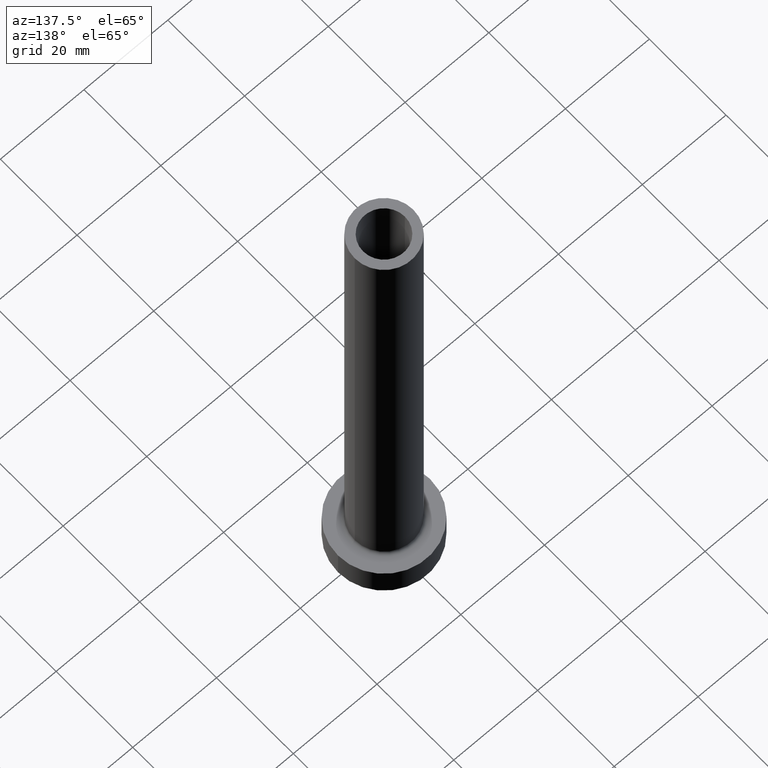
[diagram: clean part render]
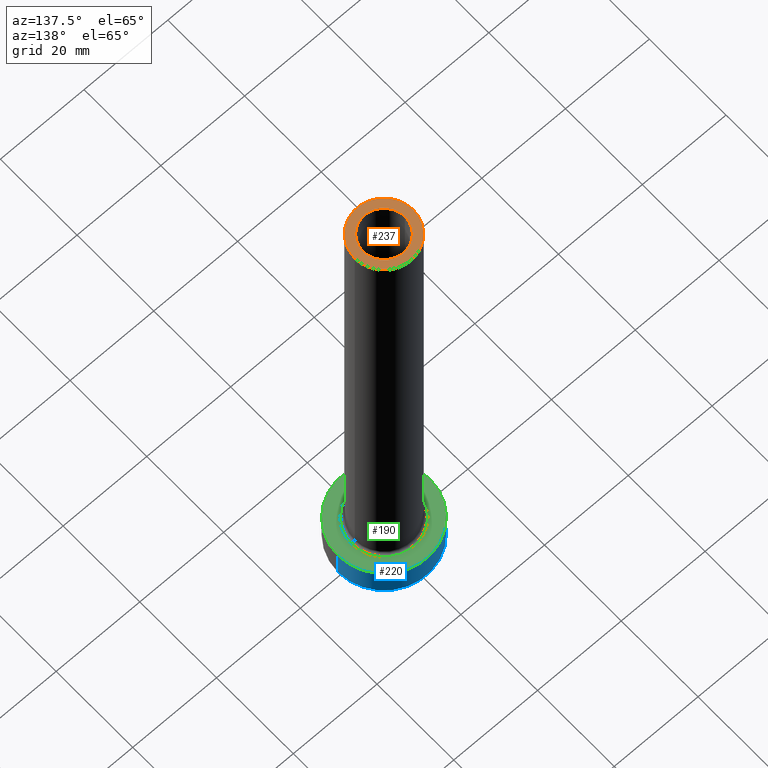
[diagram: same view with three faces highlighted in distinct colors, each labeled with its STEP entity id]
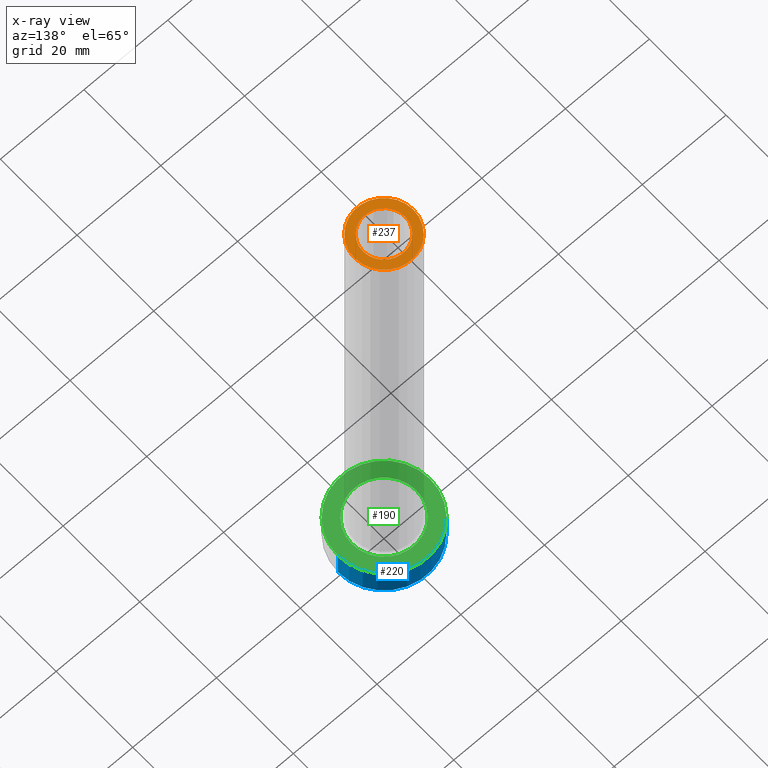
[diagram: x-ray of the same camera — body ghosted, the three highlighted faces saturated]
A machine part, auxiliary view with three faces highlighted in distinct colors.
The next image is the same camera in x-ray (body ghosted, the three faces saturated) — at least one of them is partly hidden behind the body in this view.
Their STEP definitions:

[orange] entity #237 — the highlighted planar face has unit normal (0, 0, 1).
#4 = AXIS2_PLACEMENT_3D ( 'NONE', #166, #136, #243 ) ;
#7 = VERTEX_POINT ( 'NONE', #266 ) ;
#17 = DIRECTION ( 'NONE',  ( 1.000000000000000000, 0.000000000000000000, -0.000000000000000000 ) ) ;
#18 = ORIENTED_EDGE ( 'NONE', *, *, #325, .F. ) ;
#64 = DIRECTION ( 'NONE',  ( 0.000000000000000000, 0.000000000000000000, 1.000000000000000000 ) ) ;
#66 = DIRECTION ( 'NONE',  ( 1.000000000000000000, 0.000000000000000000, 0.000000000000000000 ) ) ;
#70 = CIRCLE ( 'NONE', #223, 7.000000000000000888 ) ;
#80 = EDGE_CURVE ( 'NONE', #286, #359, #70, .T. ) ;
#91 = PLANE ( 'NONE',  #362 ) ;
#117 = DIRECTION ( 'NONE',  ( 0.000000000000000000, 0.000000000000000000, 1.000000000000000000 ) ) ;
#125 = EDGE_CURVE ( 'NONE', #7, #425, #402, .T. ) ;
#132 = AXIS2_PLACEMENT_3D ( 'NONE', #248, #380, #66 ) ;
#136 = DIRECTION ( 'NONE',  ( 0.000000000000000000, 0.000000000000000000, 1.000000000000000000 ) ) ;
#138 = CIRCLE ( 'NONE', #4, 5.000000000000000000 ) ;
#141 = FACE_BOUND ( 'NONE', #383, .T. ) ;
#147 = EDGE_CURVE ( 'NONE', #359, #286, #446, .T. ) ;
#150 = DIRECTION ( 'NONE',  ( 1.000000000000000000, 0.000000000000000000, 0.000000000000000000 ) ) ;
#165 = EDGE_LOOP ( 'NONE', ( #332, #255 ) ) ;
#166 = CARTESIAN_POINT ( 'NONE',  ( 0.000000000000000000, 0.000000000000000000, 125.0000000000000000 ) ) ;
#173 = DIRECTION ( 'NONE',  ( 0.000000000000000000, 0.000000000000000000, 1.000000000000000000 ) ) ;
#212 = CARTESIAN_POINT ( 'NONE',  ( 0.000000000000000000, 0.000000000000000000, 125.0000000000000000 ) ) ;
#223 = AXIS2_PLACEMENT_3D ( 'NONE', #280, #64, #306 ) ;
#237 = ADVANCED_FACE ( 'NONE', ( #141, #373 ), #91, .T. ) ;
#240 = CARTESIAN_POINT ( 'NONE',  ( 0.000000000000000000, 0.000000000000000000, 125.0000000000000000 ) ) ;
#243 = DIRECTION ( 'NONE',  ( 1.000000000000000000, 0.000000000000000000, 0.000000000000000000 ) ) ;
#248 = CARTESIAN_POINT ( 'NONE',  ( 0.000000000000000000, 0.000000000000000000, 125.0000000000000000 ) ) ;
#251 = AXIS2_PLACEMENT_3D ( 'NONE', #212, #117, #150 ) ;
#255 = ORIENTED_EDGE ( 'NONE', *, *, #80, .T. ) ;
#266 = CARTESIAN_POINT ( 'NONE',  ( 5.000000000000000000, 6.123233995736765296E-16, 125.0000000000000000 ) ) ;
#280 = CARTESIAN_POINT ( 'NONE',  ( 0.000000000000000000, 0.000000000000000000, 125.0000000000000000 ) ) ;
#283 = ORIENTED_EDGE ( 'NONE', *, *, #125, .F. ) ;
#286 = VERTEX_POINT ( 'NONE', #371 ) ;
#306 = DIRECTION ( 'NONE',  ( 1.000000000000000000, 0.000000000000000000, 0.000000000000000000 ) ) ;
#317 = CARTESIAN_POINT ( 'NONE',  ( -5.000000000000000000, 0.000000000000000000, 125.0000000000000000 ) ) ;
#325 = EDGE_CURVE ( 'NONE', #425, #7, #138, .T. ) ;
#326 = CARTESIAN_POINT ( 'NONE',  ( -7.000000000000000888, 0.000000000000000000, 125.0000000000000000 ) ) ;
#332 = ORIENTED_EDGE ( 'NONE', *, *, #147, .T. ) ;
#359 = VERTEX_POINT ( 'NONE', #326 ) ;
#362 = AXIS2_PLACEMENT_3D ( 'NONE', #240, #173, #17 ) ;
#371 = CARTESIAN_POINT ( 'NONE',  ( 7.000000000000000888, 8.572527594031474176E-16, 125.0000000000000000 ) ) ;
#373 = FACE_OUTER_BOUND ( 'NONE', #165, .T. ) ;
#380 = DIRECTION ( 'NONE',  ( 0.000000000000000000, 0.000000000000000000, 1.000000000000000000 ) ) ;
#383 = EDGE_LOOP ( 'NONE', ( #18, #283 ) ) ;
#402 = CIRCLE ( 'NONE', #132, 5.000000000000000000 ) ;
#425 = VERTEX_POINT ( 'NONE', #317 ) ;
#446 = CIRCLE ( 'NONE', #251, 7.000000000000000888 ) ;

[blue] entity #220 — the highlighted cylindrical surface (partial cylindrical patch) has radius 11 mm, axis along (-0, -0, -1).
#25 = CARTESIAN_POINT ( 'NONE',  ( 11.00000000000000000, 1.347111479062088405E-15, 7.000000000000000000 ) ) ;
#27 = CARTESIAN_POINT ( 'NONE',  ( 11.00000000000000000, 1.347111479062088405E-15, 0.000000000000000000 ) ) ;
#44 = CIRCLE ( 'NONE', #97, 11.00000000000000000 ) ;
#49 = ORIENTED_EDGE ( 'NONE', *, *, #366, .T. ) ;
#68 = AXIS2_PLACEMENT_3D ( 'NONE', #376, #408, #302 ) ;
#71 = EDGE_CURVE ( 'NONE', #155, #230, #201, .T. ) ;
#73 = DIRECTION ( 'NONE',  ( 0.000000000000000000, 0.000000000000000000, 1.000000000000000000 ) ) ;
#75 = EDGE_CURVE ( 'NONE', #218, #81, #215, .T. ) ;
#79 = CARTESIAN_POINT ( 'NONE',  ( -11.00000000000000000, 0.000000000000000000, 7.000000000000000000 ) ) ;
#81 = VERTEX_POINT ( 'NONE', #207 ) ;
#85 = CARTESIAN_POINT ( 'NONE',  ( 0.000000000000000000, 0.000000000000000000, 7.000000000000000000 ) ) ;
#95 = AXIS2_PLACEMENT_3D ( 'NONE', #85, #335, #439 ) ;
#97 = AXIS2_PLACEMENT_3D ( 'NONE', #214, #73, #148 ) ;
#107 = CIRCLE ( 'NONE', #68, 11.00000000000000000 ) ;
#118 = EDGE_LOOP ( 'NONE', ( #421, #397, #49, #278 ) ) ;
#148 = DIRECTION ( 'NONE',  ( 1.000000000000000000, 0.000000000000000000, 0.000000000000000000 ) ) ;
#155 = VERTEX_POINT ( 'NONE', #282 ) ;
#188 = VECTOR ( 'NONE', #270, 1000.000000000000000 ) ;
#201 = LINE ( 'NONE', #25, #228 ) ;
#207 = CARTESIAN_POINT ( 'NONE',  ( -11.00000000000000000, 0.000000000000000000, 0.000000000000000000 ) ) ;
#214 = CARTESIAN_POINT ( 'NONE',  ( 0.000000000000000000, 0.000000000000000000, 0.000000000000000000 ) ) ;
#215 = LINE ( 'NONE', #443, #188 ) ;
#218 = VERTEX_POINT ( 'NONE', #79 ) ;
#220 = ADVANCED_FACE ( 'NONE', ( #431 ), #364, .T. ) ;
#228 = VECTOR ( 'NONE', #241, 1000.000000000000000 ) ;
#229 = EDGE_CURVE ( 'NONE', #155, #218, #107, .T. ) ;
#230 = VERTEX_POINT ( 'NONE', #27 ) ;
#241 = DIRECTION ( 'NONE',  ( -0.000000000000000000, -0.000000000000000000, -1.000000000000000000 ) ) ;
#270 = DIRECTION ( 'NONE',  ( -0.000000000000000000, -0.000000000000000000, -1.000000000000000000 ) ) ;
#278 = ORIENTED_EDGE ( 'NONE', *, *, #75, .F. ) ;
#282 = CARTESIAN_POINT ( 'NONE',  ( 11.00000000000000000, 1.347111479062088405E-15, 7.000000000000000000 ) ) ;
#302 = DIRECTION ( 'NONE',  ( 1.000000000000000000, 0.000000000000000000, 0.000000000000000000 ) ) ;
#335 = DIRECTION ( 'NONE',  ( -0.000000000000000000, -0.000000000000000000, -1.000000000000000000 ) ) ;
#364 = CYLINDRICAL_SURFACE ( 'NONE', #95, 11.00000000000000000 ) ;
#366 = EDGE_CURVE ( 'NONE', #230, #81, #44, .T. ) ;
#376 = CARTESIAN_POINT ( 'NONE',  ( 0.000000000000000000, 0.000000000000000000, 7.000000000000000000 ) ) ;
#397 = ORIENTED_EDGE ( 'NONE', *, *, #71, .T. ) ;
#408 = DIRECTION ( 'NONE',  ( 0.000000000000000000, 0.000000000000000000, 1.000000000000000000 ) ) ;
#421 = ORIENTED_EDGE ( 'NONE', *, *, #229, .F. ) ;
#431 = FACE_OUTER_BOUND ( 'NONE', #118, .T. ) ;
#439 = DIRECTION ( 'NONE',  ( -1.000000000000000000, 0.000000000000000000, 0.000000000000000000 ) ) ;
#443 = CARTESIAN_POINT ( 'NONE',  ( -11.00000000000000000, 0.000000000000000000, 7.000000000000000000 ) ) ;

[green] entity #190 — the highlighted planar face has unit normal (0, 0, 1).
#34 = FACE_OUTER_BOUND ( 'NONE', #199, .T. ) ;
#35 = AXIS2_PLACEMENT_3D ( 'NONE', #427, #436, #84 ) ;
#48 = DIRECTION ( 'NONE',  ( -0.000000000000000000, -0.000000000000000000, -1.000000000000000000 ) ) ;
#67 = DIRECTION ( 'NONE',  ( 1.000000000000000000, 0.000000000000000000, 0.000000000000000000 ) ) ;
#68 = AXIS2_PLACEMENT_3D ( 'NONE', #376, #408, #302 ) ;
#79 = CARTESIAN_POINT ( 'NONE',  ( -11.00000000000000000, 0.000000000000000000, 7.000000000000000000 ) ) ;
#84 = DIRECTION ( 'NONE',  ( 1.000000000000000000, 0.000000000000000000, -0.000000000000000000 ) ) ;
#107 = CIRCLE ( 'NONE', #68, 11.00000000000000000 ) ;
#122 = DIRECTION ( 'NONE',  ( 1.000000000000000000, 0.000000000000000000, 0.000000000000000000 ) ) ;
#142 = DIRECTION ( 'NONE',  ( -0.000000000000000000, -0.000000000000000000, -1.000000000000000000 ) ) ;
#154 = CARTESIAN_POINT ( 'NONE',  ( 0.000000000000000000, 0.000000000000000000, 7.000000000000000000 ) ) ;
#155 = VERTEX_POINT ( 'NONE', #282 ) ;
#156 = EDGE_CURVE ( 'NONE', #217, #175, #310, .T. ) ;
#175 = VERTEX_POINT ( 'NONE', #259 ) ;
#181 = PLANE ( 'NONE',  #35 ) ;
#190 = ADVANCED_FACE ( 'NONE', ( #318, #34 ), #181, .T. ) ;
#199 = EDGE_LOOP ( 'NONE', ( #453, #292 ) ) ;
#202 = EDGE_CURVE ( 'NONE', #175, #217, #420, .T. ) ;
#216 = DIRECTION ( 'NONE',  ( 1.000000000000000000, 0.000000000000000000, 0.000000000000000000 ) ) ;
#217 = VERTEX_POINT ( 'NONE', #297 ) ;
#218 = VERTEX_POINT ( 'NONE', #79 ) ;
#229 = EDGE_CURVE ( 'NONE', #155, #218, #107, .T. ) ;
#250 = AXIS2_PLACEMENT_3D ( 'NONE', #252, #387, #67 ) ;
#252 = CARTESIAN_POINT ( 'NONE',  ( 0.000000000000000000, 0.000000000000000000, 7.000000000000000000 ) ) ;
#259 = CARTESIAN_POINT ( 'NONE',  ( 7.700000000000001066, 0.000000000000000000, 6.999999999999999112 ) ) ;
#265 = AXIS2_PLACEMENT_3D ( 'NONE', #388, #142, #216 ) ;
#282 = CARTESIAN_POINT ( 'NONE',  ( 11.00000000000000000, 1.347111479062088405E-15, 7.000000000000000000 ) ) ;
#292 = ORIENTED_EDGE ( 'NONE', *, *, #229, .T. ) ;
#297 = CARTESIAN_POINT ( 'NONE',  ( -7.700000000000001066, 9.429780353434621002E-16, 6.999999999999999112 ) ) ;
#302 = DIRECTION ( 'NONE',  ( 1.000000000000000000, 0.000000000000000000, 0.000000000000000000 ) ) ;
#310 = CIRCLE ( 'NONE', #265, 7.700000000000001066 ) ;
#318 = FACE_BOUND ( 'NONE', #329, .T. ) ;
#329 = EDGE_LOOP ( 'NONE', ( #444, #391 ) ) ;
#354 = EDGE_CURVE ( 'NONE', #218, #155, #384, .T. ) ;
#376 = CARTESIAN_POINT ( 'NONE',  ( 0.000000000000000000, 0.000000000000000000, 7.000000000000000000 ) ) ;
#384 = CIRCLE ( 'NONE', #250, 11.00000000000000000 ) ;
#387 = DIRECTION ( 'NONE',  ( 0.000000000000000000, 0.000000000000000000, 1.000000000000000000 ) ) ;
#388 = CARTESIAN_POINT ( 'NONE',  ( 0.000000000000000000, 0.000000000000000000, 7.000000000000000000 ) ) ;
#391 = ORIENTED_EDGE ( 'NONE', *, *, #156, .T. ) ;
#408 = DIRECTION ( 'NONE',  ( 0.000000000000000000, 0.000000000000000000, 1.000000000000000000 ) ) ;
#420 = CIRCLE ( 'NONE', #428, 7.700000000000001066 ) ;
#427 = CARTESIAN_POINT ( 'NONE',  ( 0.000000000000000000, 0.000000000000000000, 7.000000000000000000 ) ) ;
#428 = AXIS2_PLACEMENT_3D ( 'NONE', #154, #48, #122 ) ;
#436 = DIRECTION ( 'NONE',  ( 0.000000000000000000, 0.000000000000000000, 1.000000000000000000 ) ) ;
#444 = ORIENTED_EDGE ( 'NONE', *, *, #202, .T. ) ;
#453 = ORIENTED_EDGE ( 'NONE', *, *, #354, .T. ) ;